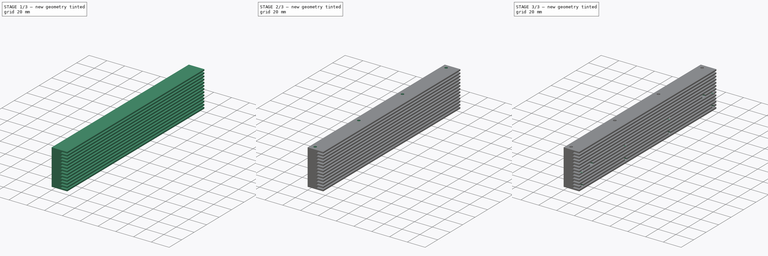
[diagram: build sequence overview — one tinted view per stage of 3, left to right]
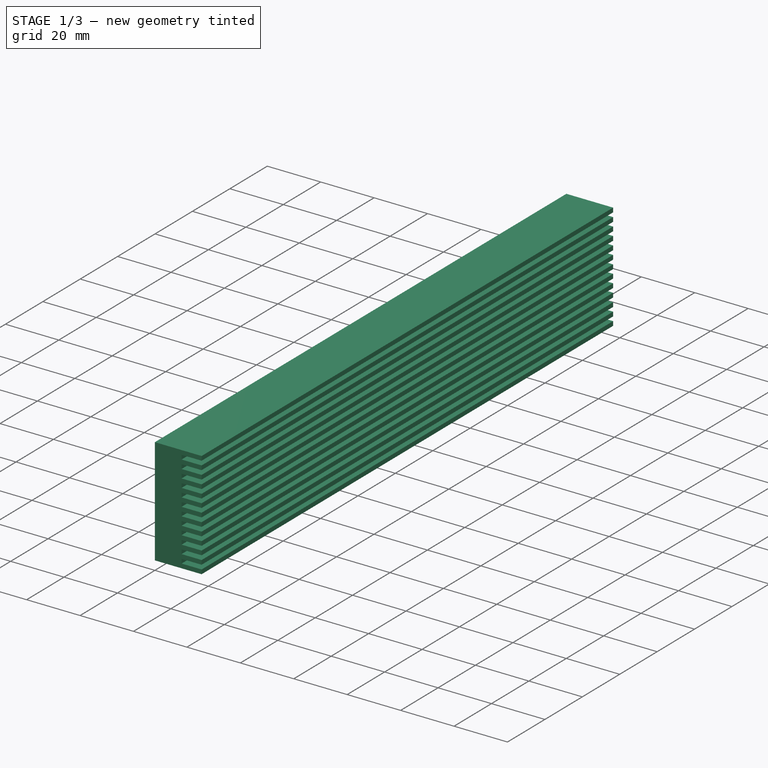
[diagram: stage 1 of 3 — iso view after this stage's code; geometry added in this stage tinted green]
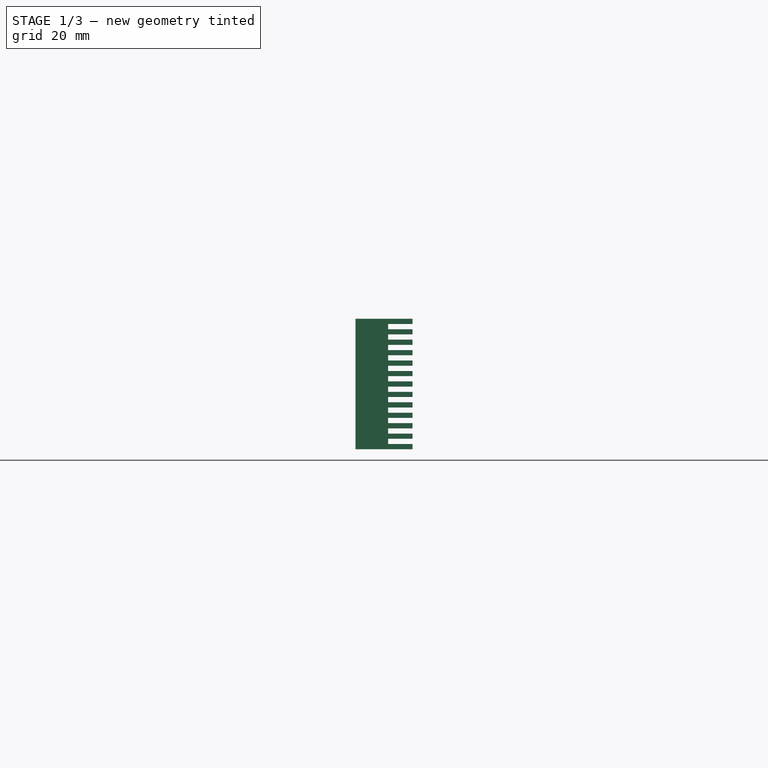
[diagram: stage 1 of 3 — front view after this stage's code; geometry added in this stage tinted green]
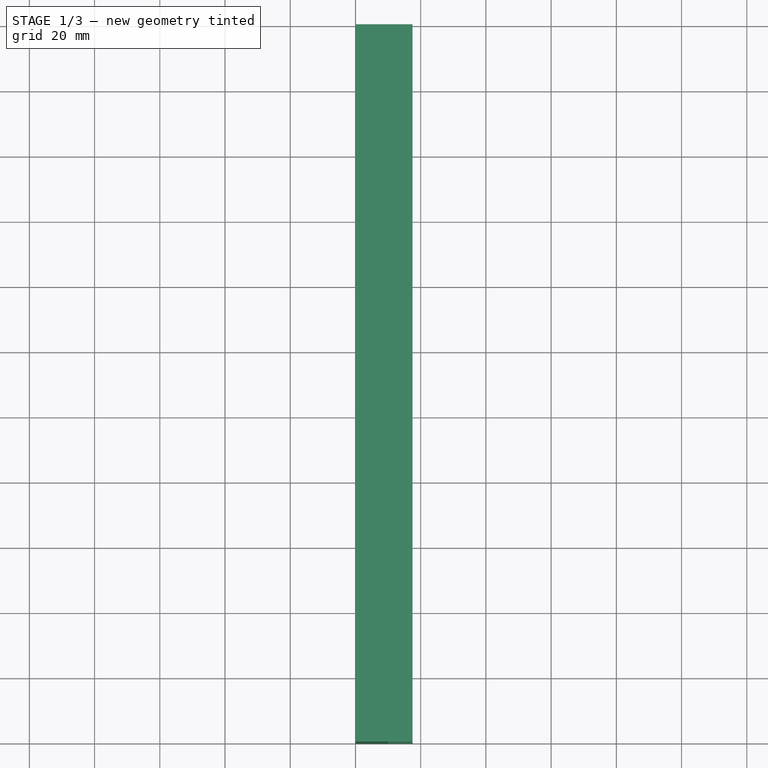
[diagram: stage 1 of 3 — top view after this stage's code; geometry added in this stage tinted green]
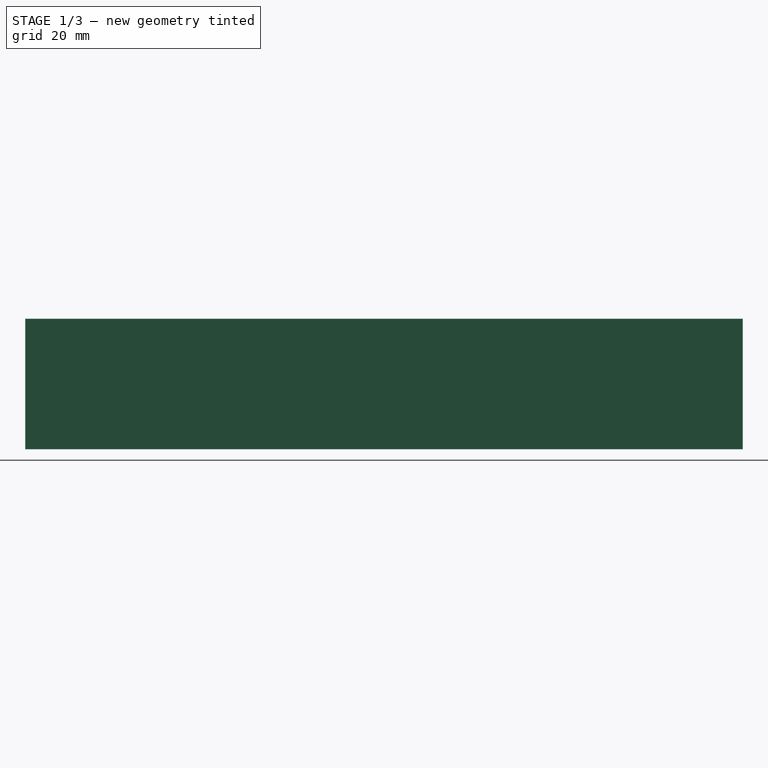
[diagram: stage 1 of 3 — right view after this stage's code; geometry added in this stage tinted green]
FCSTD DOCUMENT  (FreeCAD 0.17R11141 (Git))
Label: fourhead_heater-sink
License: All rights reserved
LicenseURL: http://en.wikipedia.org/wiki/All_rights_reserved
objects: Sketcher::SketchObject×6, PartDesign::Pocket×5, PartDesign::Pad×1, PartDesign::Body×1
note: 19 computed .brp shape members not serialized (recipe doc carries the construction recipe); baked Part::Feature solids carry a one-line shape summary decoded from their .brp

FEATURE [Sketcher::SketchObject] Sketch
  MapMode = 5
  Placement = pos=(0,0,0) rot=(1,0,0;1.5708rad)
  Support = -> [XZ_Plane]
  sketch-geometry (4):
    g0: LineSegment StartX=0 StartY=0 StartZ=0 EndX=17.5 EndY=0 EndZ=0
    g1: LineSegment StartX=17.5 StartY=0 StartZ=0 EndX=17.5 EndY=40 EndZ=0
    g2: LineSegment StartX=17.5 StartY=40 StartZ=0 EndX=0 EndY=40 EndZ=0
    g3: LineSegment StartX=0 StartY=40 StartZ=0 EndX=0 EndY=0 EndZ=0
  constraints (11):
    c: Coincident(g0,g1)
    c: Coincident(g1,g2)
    c: Coincident(g2,g3)
    c: Coincident(g3,g0)
    c: Horizontal(g0)
    c: Horizontal(g2)
    c: Vertical(g1)
    c: Vertical(g3)
    c: Coincident(g0,g-1)
    c: DistanceX(g2,g2) = 17.5
    c: DistanceY(g3,g3) = 40
FEATURE [PartDesign::Pad] Pad
  Length = 220
  Length2 = 100
  Placement = pos=(0,0,0) rot=(1,0,0;1.5708rad)
  Profile = -> Sketch
  Type = 0
FEATURE [Sketcher::SketchObject] Sketch001
  ExternalGeometry = -> [Pad]
  MapMode = 5
  Placement = pos=(0,-220,0) rot=(1,0,0;1.5708rad)
  Support = -> [Pad]
  sketch-geometry (61):
    g0: LineSegment StartX=17.5 StartY=1.6 StartZ=0 EndX=10 EndY=1.6 EndZ=0
    g1: LineSegment StartX=10 StartY=1.6 StartZ=0 EndX=10 EndY=3.2 EndZ=0
    g2: LineSegment StartX=10 StartY=3.2 StartZ=0 EndX=17.5 EndY=3.2 EndZ=0
    g3: LineSegment StartX=17.5 StartY=3.2 StartZ=0 EndX=17.5 EndY=1.6 EndZ=0
    g4: LineSegment StartX=17.5 StartY=4.8 StartZ=0 EndX=10 EndY=4.8 EndZ=0
    g5: LineSegment StartX=10 StartY=4.8 StartZ=0 EndX=10 EndY=6.4 EndZ=0
    g6: LineSegment StartX=10 StartY=6.4 StartZ=0 EndX=17.5 EndY=6.4 EndZ=0
    g7: LineSegment StartX=17.5 StartY=6.4 StartZ=0 EndX=17.5 EndY=4.8 EndZ=0
    g8: LineSegment StartX=17.5 StartY=8 StartZ=0 EndX=10 EndY=8 EndZ=0
    g9: LineSegment StartX=10 StartY=8 StartZ=0 EndX=10 EndY=9.6 EndZ=0
    g10: LineSegment StartX=10 StartY=9.6 StartZ=0 EndX=17.5 EndY=9.6 EndZ=0
    g11: LineSegment StartX=17.5 StartY=9.6 StartZ=0 EndX=17.5 EndY=8 EndZ=0
    g12: LineSegment StartX=17.5 StartY=11.2 StartZ=0 EndX=10 EndY=11.2 EndZ=0
    g13: LineSegment StartX=10 StartY=11.2 StartZ=0 EndX=10 EndY=12.8 EndZ=0
    g14: LineSegment StartX=10 StartY=12.8 StartZ=0 EndX=17.5 EndY=12.8 EndZ=0
    g15: LineSegment StartX=17.5 StartY=12.8 StartZ=0 EndX=17.5 EndY=11.2 EndZ=0
    g16: LineSegment StartX=17.5 StartY=14.4 StartZ=0 EndX=10 EndY=14.4 EndZ=0
    g17: LineSegment StartX=10 StartY=14.4 StartZ=0 EndX=10 EndY=16 EndZ=0
    g18: LineSegment StartX=10 StartY=16 StartZ=0 EndX=17.5 EndY=16 EndZ=0
    g19: LineSegment StartX=17.5 StartY=16 StartZ=0 EndX=17.5 EndY=14.4 EndZ=0
    g20: LineSegment StartX=17.5 StartY=17.6 StartZ=0 EndX=10 EndY=17.6 EndZ=0
    g21: LineSegment StartX=10 StartY=17.6 StartZ=0 EndX=10 EndY=19.2 EndZ=0
    g22: LineSegment StartX=10 StartY=19.2 StartZ=0 EndX=17.5 EndY=19.2 EndZ=0
    g23: LineSegment StartX=17.5 StartY=19.2 StartZ=0 EndX=17.5 EndY=17.6 EndZ=0
    g24: LineSegment StartX=17.5 StartY=20.8 StartZ=0 EndX=10 EndY=20.8 EndZ=0
    g25: LineSegment StartX=10 StartY=20.8 StartZ=0 EndX=10 EndY=22.4 EndZ=0
    g26: LineSegment StartX=10 StartY=22.4 StartZ=0 EndX=17.5 EndY=22.4 EndZ=0
    g27: LineSegment StartX=17.5 StartY=22.4 StartZ=0 EndX=17.5 EndY=20.8 EndZ=0
    g28: LineSegment StartX=17.5 StartY=24 StartZ=0 EndX=10 EndY=24 EndZ=0
    g29: LineSegment StartX=10 StartY=24 StartZ=0 EndX=10 EndY=25.6 EndZ=0
    g30: LineSegment StartX=10 StartY=25.6 StartZ=0 EndX=17.5 EndY=25.6 EndZ=0
    g31: LineSegment StartX=17.5 StartY=25.6 StartZ=0 EndX=17.5 EndY=24 EndZ=0
    g32: LineSegment StartX=17.5 StartY=27.2 StartZ=0 EndX=10 EndY=27.2 EndZ=0
    g33: LineSegment StartX=10 StartY=27.2 StartZ=0 EndX=10 EndY=28.8 EndZ=0
    g34: LineSegment StartX=10 StartY=28.8 StartZ=0 EndX=17.5 EndY=28.8 EndZ=0
    g35: LineSegment StartX=17.5 StartY=28.8 StartZ=0 EndX=17.5 EndY=27.2 EndZ=0
    g36: LineSegment StartX=17.5 StartY=30.4 StartZ=0 EndX=10 EndY=30.4 EndZ=0
    g37: LineSegment StartX=10 StartY=30.4 StartZ=0 EndX=10 EndY=32 EndZ=0
    g38: LineSegment StartX=10 StartY=32 StartZ=0 EndX=17.5 EndY=32 EndZ=0
    g39: LineSegment StartX=17.5 StartY=32 StartZ=0 EndX=17.5 EndY=30.4 EndZ=0
    g40: LineSegment StartX=17.5 StartY=35.2 StartZ=0 EndX=10 EndY=35.2 EndZ=0
    g41: LineSegment StartX=10 StartY=35.2 StartZ=0 EndX=10 EndY=33.6 EndZ=0
    g42: LineSegment StartX=10 StartY=33.6 StartZ=0 EndX=17.5 EndY=33.6 EndZ=0
    g43: LineSegment StartX=17.5 StartY=33.6 StartZ=0 EndX=17.5 EndY=35.2 EndZ=0
    g44: LineSegment [constr] StartX=10 StartY=0 StartZ=0 EndX=10 EndY=1.6 EndZ=0
    g45: LineSegment [constr] StartX=10 StartY=3.2 StartZ=0 EndX=10 EndY=4.8 EndZ=0
    g46: LineSegment [constr] StartX=10 StartY=6.4 StartZ=0 EndX=10 EndY=8 EndZ=0
    g47: LineSegment [constr] StartX=10 StartY=9.6 StartZ=0 EndX=10 EndY=11.2 EndZ=0
    g48: LineSegment [constr] StartX=10 StartY=12.8 StartZ=0 EndX=10 EndY=14.4 EndZ=0
    g49: LineSegment [constr] StartX=10 StartY=16 StartZ=0 EndX=10 EndY=17.6 EndZ=0
    g50: LineSegment [constr] StartX=10 StartY=19.2 StartZ=0 EndX=10 EndY=20.8 EndZ=0
    g51: LineSegment [constr] StartX=10 StartY=22.4 StartZ=0 EndX=10 EndY=24 EndZ=0
    g52: LineSegment [constr] StartX=10 StartY=25.6 StartZ=0 EndX=10 EndY=27.2 EndZ=0
    g53: LineSegment [constr] StartX=10 StartY=28.8 StartZ=0 EndX=10 EndY=30.4 EndZ=0
    g54: LineSegment [constr] StartX=10 StartY=32 StartZ=0 EndX=10 EndY=33.6 EndZ=0
    g55: LineSegment StartX=17.5 StartY=36.8 StartZ=0 EndX=10 EndY=36.8 EndZ=0
    g56: LineSegment StartX=10 StartY=36.8 StartZ=0 EndX=10 EndY=38.4 EndZ=0
    g57: LineSegment StartX=10 StartY=38.4 StartZ=0 EndX=17.5 EndY=38.4 EndZ=0
    g58: LineSegment StartX=17.5 StartY=38.4 StartZ=0 EndX=17.5 EndY=36.8 EndZ=0
    g59: LineSegment [constr] StartX=10 StartY=40 StartZ=0 EndX=10 EndY=38.4 EndZ=0
    g60: LineSegment [constr] StartX=10 StartY=36.8 StartZ=0 EndX=10 EndY=35.2 EndZ=0
  constraints (181):
    c: Coincident(g0,g1)
    c: Coincident(g1,g2)
    c: Coincident(g2,g3)
    c: Coincident(g3,g0)
    c: Horizontal(g0)
    c: Horizontal(g2)
    c: Vertical(g1)
    c: Vertical(g3)
    c: PointOnObject(g0,g-3)
    c: Coincident(g4,g5)
    c: Coincident(g5,g6)
    c: Coincident(g6,g7)
    c: Coincident(g7,g4)
    c: Horizontal(g4)
    c: Horizontal(g6)
    c: Vertical(g5)
    c: Vertical(g7)
    c: PointOnObject(g4,g-3)
    c: Coincident(g8,g9)
    c: Coincident(g9,g10)
    c: Coincident(g10,g11)
    c: Coincident(g11,g8)
    c: Horizontal(g8)
    c: Horizontal(g10)
    c: Vertical(g9)
    c: Vertical(g11)
    c: PointOnObject(g8,g-3)
    c: Coincident(g12,g13)
    c: Coincident(g13,g14)
    c: Coincident(g14,g15)
    c: Coincident(g15,g12)
    c: Horizontal(g12)
    c: Horizontal(g14)
    c: Vertical(g13)
    c: Vertical(g15)
    c: PointOnObject(g12,g-3)
    c: Coincident(g16,g17)
    c: Coincident(g17,g18)
    c: Coincident(g18,g19)
    c: Coincident(g19,g16)
    c: Horizontal(g16)
    c: Horizontal(g18)
    c: Vertical(g17)
    c: Vertical(g19)
    c: PointOnObject(g16,g-3)
    c: Coincident(g20,g21)
    c: Coincident(g21,g22)
    c: Coincident(g22,g23)
    c: Coincident(g23,g20)
    c: Horizontal(g20)
    c: Horizontal(g22)
    c: Vertical(g21)
    c: Vertical(g23)
    c: PointOnObject(g20,g-3)
    c: Coincident(g24,g25)
    c: Coincident(g25,g26)
    c: Coincident(g26,g27)
    c: Coincident(g27,g24)
    c: Horizontal(g24)
    c: Horizontal(g26)
    c: Vertical(g25)
    c: Vertical(g27)
    c: PointOnObject(g24,g-3)
    c: Coincident(g28,g29)
    c: Coincident(g29,g30)
    c: Coincident(g30,g31)
    c: Coincident(g31,g28)
    c: Horizontal(g28)
    c: Horizontal(g30)
    c: Vertical(g29)
    c: Vertical(g31)
    c: PointOnObject(g28,g-3)
    c: Coincident(g32,g33)
    c: Coincident(g33,g34)
    c: Coincident(g34,g35)
    c: Coincident(g35,g32)
    c: Horizontal(g32)
    c: Horizontal(g34)
    c: Vertical(g33)
    c: Vertical(g35)
    c: PointOnObject(g32,g-3)
    c: Coincident(g36,g37)
    c: Coincident(g37,g38)
    c: Coincident(g38,g39)
    c: Coincident(g39,g36)
    c: Horizontal(g36)
    c: Horizontal(g38)
    c: Vertical(g37)
    c: Vertical(g39)
    c: Coincident(g40,g41)
    c: Coincident(g41,g42)
    c: Coincident(g42,g43)
    c: Coincident(g43,g40)
    c: Horizontal(g40)
    c: Horizontal(g42)
    c: Vertical(g41)
    c: Vertical(g43)
    c: PointOnObject(g40,g-3)
    c: PointOnObject(g44,g-1)
    c: Coincident(g44,g0)
    c: Vertical(g44)
    c: Coincident(g45,g1)
    c: Coincident(g45,g4)
    c: Vertical(g45)
    c: Coincident(g46,g5)
    c: Coincident(g46,g8)
    c: Coincident(g47,g9)
    c: Coincident(g47,g12)
    c: Coincident(g48,g13)
    c: Coincident(g48,g16)
    c: Coincident(g49,g17)
    c: Coincident(g49,g20)
    c: Coincident(g50,g21)
    c: Coincident(g50,g24)
    c: Coincident(g51,g25)
    c: Coincident(g51,g28)
    c: Coincident(g52,g29)
    c: Coincident(g52,g32)
    c: Coincident(g53,g33)
    c: Coincident(g36,g53)
    c: Equal(g53,g52)
    c: Equal(g52,g51)
    c: Equal(g51,g50)
    c: Equal(g50,g49)
    c: Equal(g49,g48)
    c: Equal(g48,g47)
    c: Equal(g47,g46)
    c: Equal(g46,g45)
    c: Equal(g45,g44)
    c: Vertical(g50)
    c: Vertical(g49)
    c: Vertical(g48)
    c: Vertical(g47)
    c: Vertical(g46)
    c: Vertical(g51)
    c: Vertical(g52)
    c: Vertical(g53)
    c: DistanceY(g44,g44) = 1.6
    c: PointOnObject(g38,g-3)
    c: Coincident(g54,g37)
    c: Coincident(g54,g41)
    c: Equal(g25,g50)
    c: Equal(g50,g51)
    c: Equal(g51,g29)
    c: Equal(g29,g52)
    c: Equal(g52,g33)
    c: Equal(g33,g53)
    c: Equal(g53,g37)
    c: Equal(g37,g54)
    c: Equal(g54,g41)
    c: Equal(g41,g21)
    c: Equal(g21,g49)
    c: Equal(g49,g17)
    c: Equal(g17,g48)
    c: Equal(g48,g13)
    c: Equal(g13,g47)
    c: Equal(g47,g9)
    c: Equal(g9,g46)
    c: Equal(g46,g5)
    c: Equal(g5,g45)
    c: Equal(g45,g1)
    c: Equal(g1,g44)
    c: Vertical(g54)
    c: Coincident(g55,g56)
    c: Coincident(g56,g57)
    c: Coincident(g57,g58)
    c: Coincident(g58,g55)
    c: Horizontal(g55)
    c: Horizontal(g57)
    c: Vertical(g56)
    c: Vertical(g58)
    c: PointOnObject(g55,g-3)
    c: Coincident(g59,g56)
    c: Coincident(g60,g55)
    c: Coincident(g60,g40)
    c: Vertical(g60)
    c: Vertical(g59)
    c: Equal(g59,g56)
    c: Equal(g56,g60)
    c: Equal(g60,g41)
    c: DistanceX(g57,g57) = 7.5
FEATURE [PartDesign::Pocket] Pocket
  BaseFeature = -> Pad
  Length = 5
  Placement = pos=(0,0,0) rot=(1,0,0;1.5708rad)
  Profile = -> Sketch001
  Type = 1
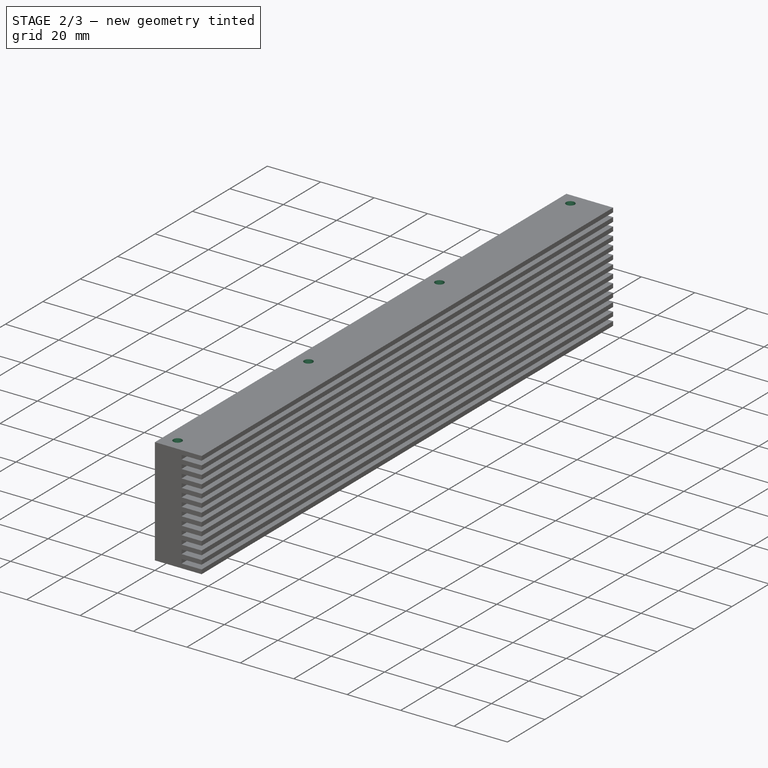
[diagram: stage 2 of 3 — iso view after this stage's code; geometry added in this stage tinted green]
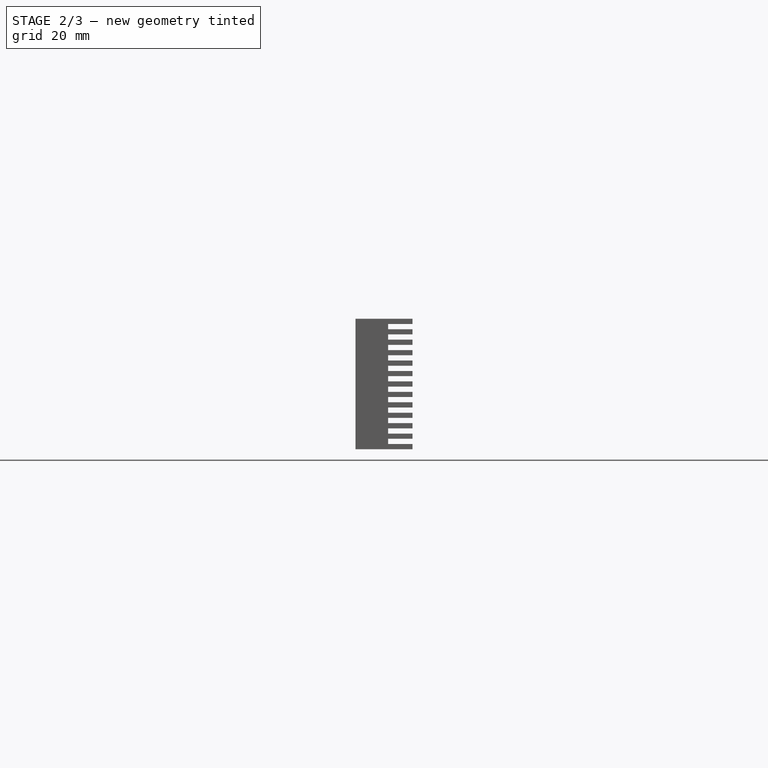
[diagram: stage 2 of 3 — front view after this stage's code; geometry added in this stage tinted green]
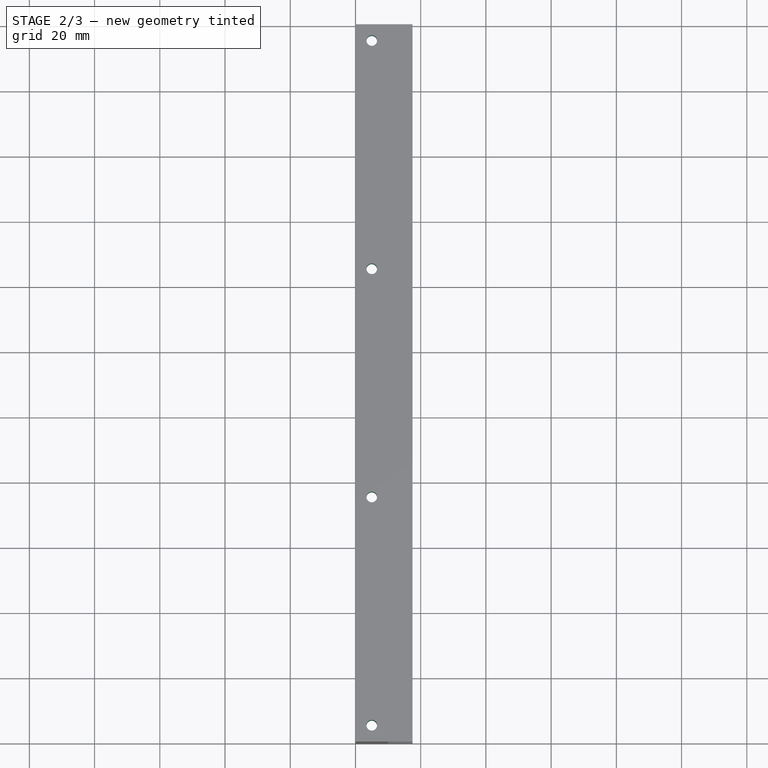
[diagram: stage 2 of 3 — top view after this stage's code; geometry added in this stage tinted green]
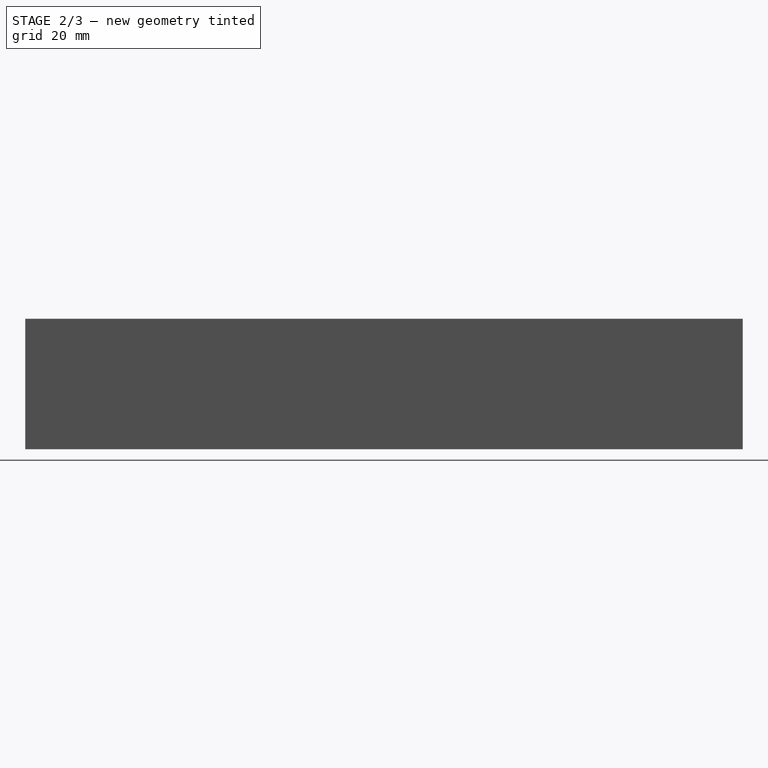
[diagram: stage 2 of 3 — right view after this stage's code; geometry added in this stage tinted green]
FEATURE [Sketcher::SketchObject] Sketch002
  ExternalGeometry = -> [Pocket]
  MapMode = 5
  Placement = pos=(0,0,0) rot=(1,0,0;3.14159rad)
  Support = -> [Pocket]
  sketch-geometry (9):
    g0: LineSegment [constr] StartX=0 StartY=220 StartZ=0 EndX=5 EndY=215 EndZ=0
    g1: LineSegment [constr] StartX=5 StartY=215 StartZ=0 EndX=5 EndY=145 EndZ=0
    g2: LineSegment [constr] StartX=5 StartY=145 StartZ=0 EndX=5 EndY=75 EndZ=0
    g3: LineSegment [constr] StartX=5 StartY=75 StartZ=0 EndX=5 EndY=5 EndZ=0
    g4: LineSegment [constr] StartX=5 StartY=5 StartZ=0 EndX=0 EndY=0 EndZ=0
    g5: Circle CenterX=5 CenterY=145 CenterZ=0 NormalX=0 NormalY=0 NormalZ=1 Radius=3.5
    g6: Circle CenterX=5 CenterY=75 CenterZ=0 NormalX=0 NormalY=0 NormalZ=1 Radius=3.5
    g7: Circle CenterX=5 CenterY=5 CenterZ=0 NormalX=0 NormalY=0 NormalZ=1 Radius=3.5
    g8: Circle CenterX=5 CenterY=215 CenterZ=0 NormalX=0 NormalY=0 NormalZ=1 Radius=3.5
  constraints (22):
    c: Coincident(g-3,g0)
    c: Coincident(g0,g1)
    c: Vertical(g1)
    c: Coincident(g1,g2)
    c: Vertical(g2)
    c: Coincident(g2,g3)
    c: Vertical(g3)
    c: Coincident(g3,g4)
    c: Coincident(g4,g-1)
    c: Equal(g4,g0)
    c: Equal(g1,g2)
    c: Equal(g2,g3)
    c: DistanceY(g1,g1) = 70
    c: Coincident(g5,g1)
    c: Coincident(g6,g2)
    c: Coincident(g7,g3)
    c: Coincident(g8,g0)
    c: Equal(g5,g6)
    c: Equal(g6,g7)
    c: Equal(g7,g8)
    c: Radius(g8) = 3.5
    c: DistanceX(g3,g-4) = 12.5
FEATURE [PartDesign::Pocket] Pocket001
  BaseFeature = -> Pocket
  Length = 25
  Placement = pos=(0,0,0) rot=(1,0,0;1.5708rad)
  Profile = -> Sketch002
  Type = 0
FEATURE [Sketcher::SketchObject] Sketch003
  ExternalGeometry = -> [Pocket001]
  MapMode = 5
  Placement = pos=(0,0,0) rot=(1,0,0;3.14159rad)
  Support = -> [Pocket001]
  sketch-geometry (4):
    g0: Circle CenterX=5 CenterY=215 CenterZ=0 NormalX=0 NormalY=0 NormalZ=1 Radius=1.625
    g1: Circle CenterX=5 CenterY=145 CenterZ=0 NormalX=0 NormalY=0 NormalZ=1 Radius=1.625
    g2: Circle CenterX=5 CenterY=75 CenterZ=0 NormalX=0 NormalY=0 NormalZ=1 Radius=1.625
    g3: Circle CenterX=5 CenterY=5 CenterZ=0 NormalX=0 NormalY=0 NormalZ=1 Radius=1.625
  constraints (8):
    c: Coincident(g0,g-6)
    c: Coincident(g1,g-5)
    c: Coincident(g2,g-4)
    c: Coincident(g3,g-3)
    c: Equal(g1,g0)
    c: Equal(g0,g2)
    c: Equal(g2,g3)
    c: Radius(g0) = 1.625
FEATURE [PartDesign::Pocket] Pocket002
  BaseFeature = -> Pocket001
  Length = 5
  Placement = pos=(0,0,0) rot=(1,0,0;1.5708rad)
  Profile = -> Sketch003
  Type = 1
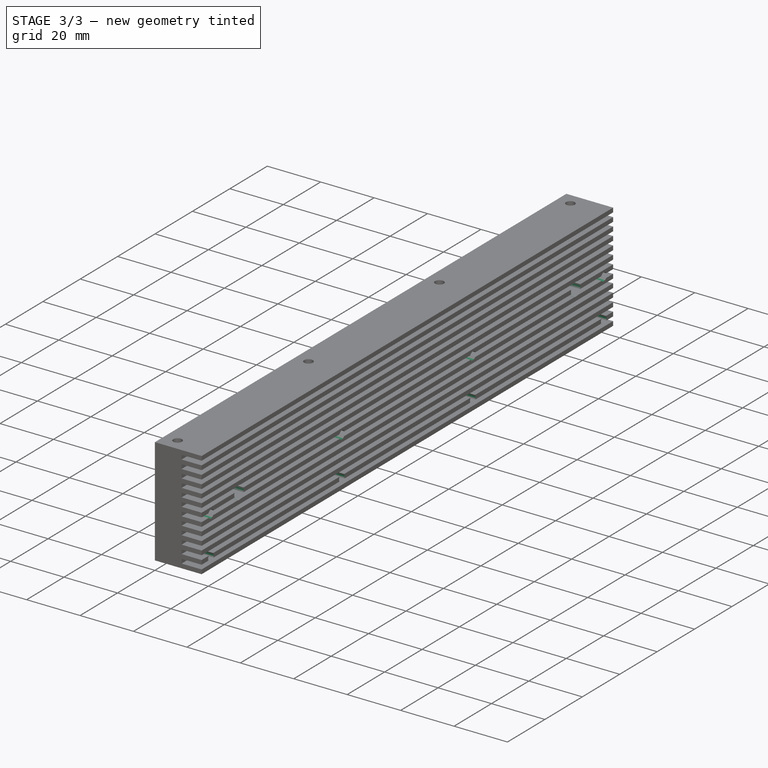
[diagram: stage 3 of 3 — iso view after this stage's code; geometry added in this stage tinted green]
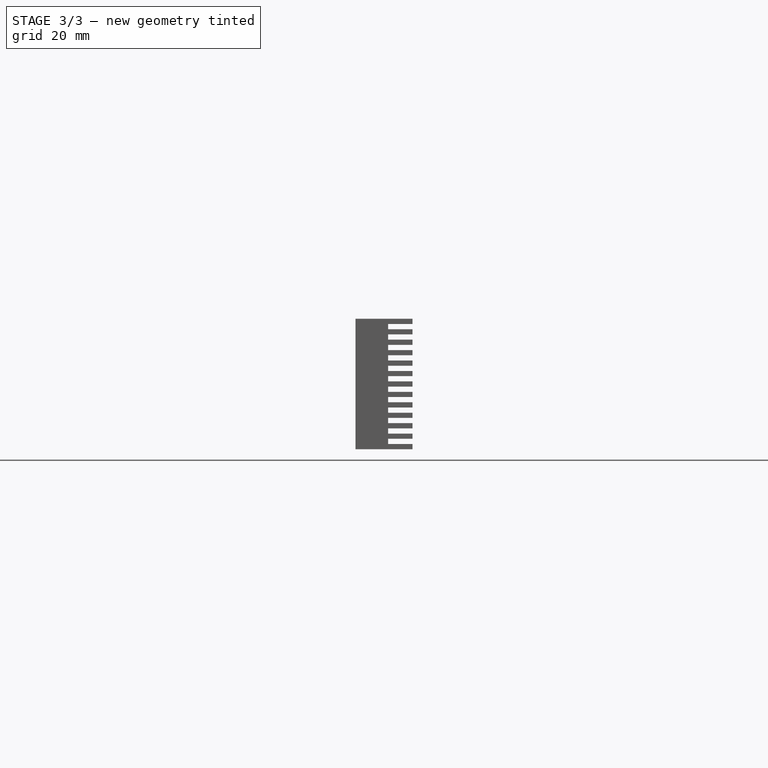
[diagram: stage 3 of 3 — front view after this stage's code; geometry added in this stage tinted green]
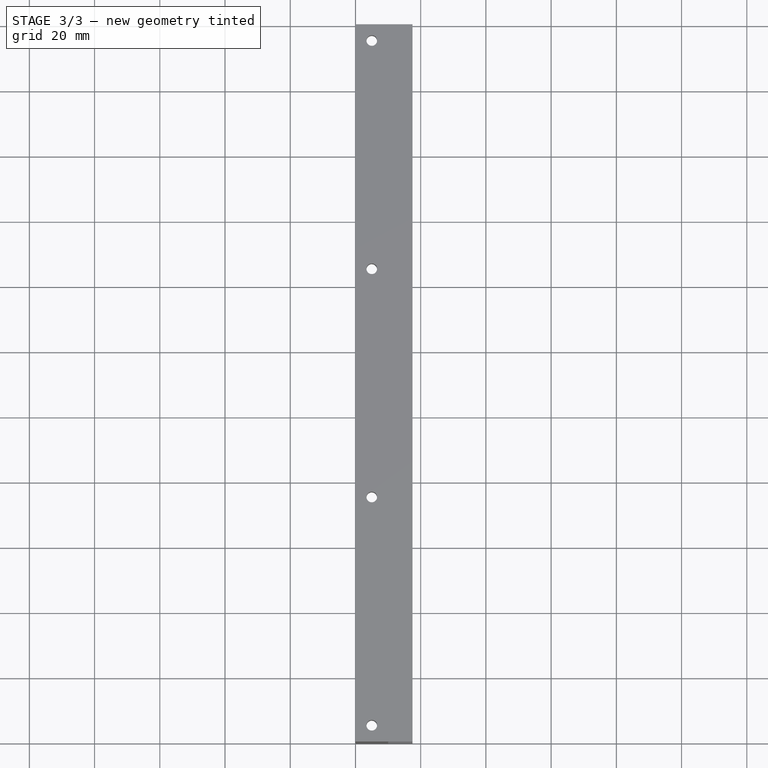
[diagram: stage 3 of 3 — top view after this stage's code; geometry added in this stage tinted green]
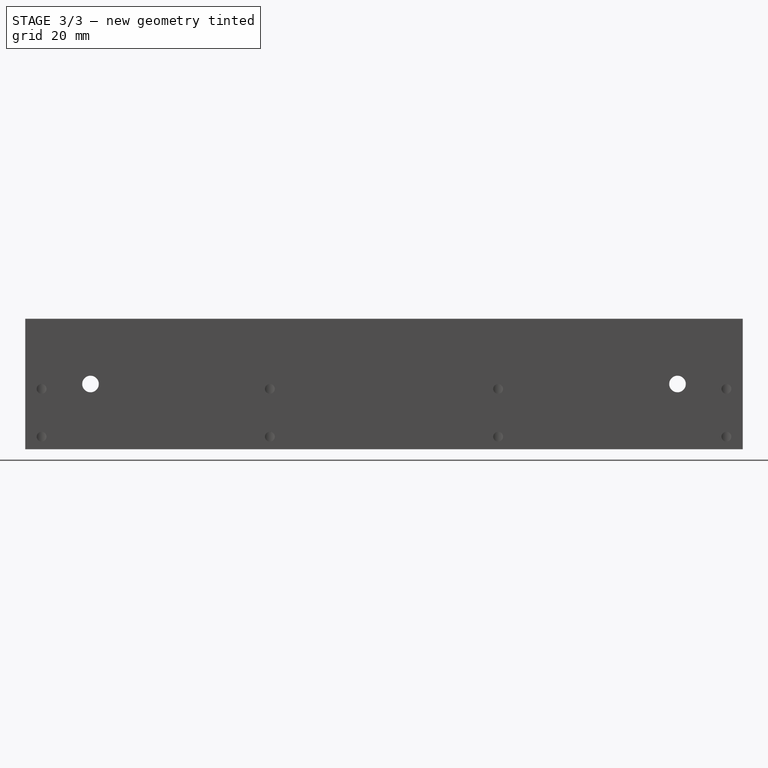
[diagram: stage 3 of 3 — right view after this stage's code; geometry added in this stage tinted green]
FEATURE [Sketcher::SketchObject] Sketch004
  ExternalGeometry = -> [Pocket002]
  MapMode = 5
  Placement = pos=(17.5,0,0) rot=(0.707107,0,0.707107;3.14159rad)
  Support = -> [Pocket002]
  sketch-geometry (14):
    g0: Circle CenterX=3.85 CenterY=215 CenterZ=0 NormalX=0 NormalY=0 NormalZ=1 Radius=1.5
    g1: Circle CenterX=18.5 CenterY=215 CenterZ=0 NormalX=0 NormalY=0 NormalZ=1 Radius=1.5
    g2: Circle CenterX=3.85 CenterY=145 CenterZ=0 NormalX=0 NormalY=0 NormalZ=1 Radius=1.5
    g3: Circle CenterX=18.5 CenterY=145 CenterZ=0 NormalX=0 NormalY=0 NormalZ=1 Radius=1.5
    g4: Circle CenterX=3.85 CenterY=75 CenterZ=0 NormalX=0 NormalY=0 NormalZ=1 Radius=1.5
    g5: Circle CenterX=18.5 CenterY=75 CenterZ=0 NormalX=0 NormalY=0 NormalZ=1 Radius=1.5
    g6: Circle CenterX=3.85 CenterY=5 CenterZ=0 NormalX=0 NormalY=0 NormalZ=1 Radius=1.5
    g7: Circle CenterX=18.5 CenterY=5 CenterZ=0 NormalX=0 NormalY=0 NormalZ=1 Radius=1.5
    g8: LineSegment [constr] StartX=3.85 StartY=145 StartZ=0 EndX=3.85 EndY=75 EndZ=0
    g9: LineSegment [constr] StartX=3.85 StartY=75 StartZ=0 EndX=3.85 EndY=5 EndZ=0
    g10: LineSegment [constr] StartX=18.5 StartY=5 StartZ=0 EndX=18.5 EndY=75 EndZ=0
    g11: LineSegment [constr] StartX=18.5 StartY=75 StartZ=0 EndX=18.5 EndY=145 EndZ=0
    g12: LineSegment [constr] StartX=18.5 StartY=145 StartZ=0 EndX=18.5 EndY=215 EndZ=0
    g13: LineSegment [constr] StartX=3.85 StartY=145 StartZ=0 EndX=3.85 EndY=215 EndZ=0
  constraints (36):
    c: PointOnObject(g0,g-6)
    c: PointOnObject(g1,g-6)
    c: PointOnObject(g2,g-3)
    c: PointOnObject(g3,g-3)
    c: PointOnObject(g4,g-4)
    c: PointOnObject(g5,g-4)
    c: PointOnObject(g6,g-5)
    c: PointOnObject(g7,g-5)
    c: Equal(g7,g6)
    c: Equal(g6,g5)
    c: Equal(g5,g4)
    c: Equal(g4,g2)
    c: Equal(g2,g3)
    c: Equal(g3,g1)
    c: Equal(g1,g0)
    c: Coincident(g8,g4)
    c: Vertical(g8)
    c: Coincident(g8,g9)
    c: Coincident(g9,g6)
    c: Coincident(g10,g7)
    c: Coincident(g10,g5)
    c: Coincident(g10,g11)
    c: Coincident(g11,g3)
    c: Coincident(g11,g12)
    c: Vertical(g12)
    c: Coincident(g1,g12)
    c: Coincident(g13,g2)
    c: Coincident(g13,g0)
    c: Vertical(g13)
    c: Coincident(g2,g8)
    c: Vertical(g11)
    c: Vertical(g10)
    c: Vertical(g9)
    c: Radius(g1) = 1.5
    c: DistanceX(g0) = 3.85
    c: DistanceX(g1) = 18.5
FEATURE [PartDesign::Pocket] Pocket003
  BaseFeature = -> Pocket002
  Length = 13
  Placement = pos=(0,0,0) rot=(1,0,0;1.5708rad)
  Profile = -> Sketch004
  Type = 0
FEATURE [Sketcher::SketchObject] Sketch005
  ExternalGeometry = -> [Pocket003]
  MapMode = 5
  Placement = pos=(0,0,0) rot=(0.707107,0,-0.707107;3.14159rad)
  Support = -> [Pocket003]
  sketch-geometry (7):
    g0: Circle CenterX=-20 CenterY=200 CenterZ=0 NormalX=0 NormalY=0 NormalZ=1 Radius=2.54
    g1: Circle CenterX=-20 CenterY=20 CenterZ=0 NormalX=0 NormalY=0 NormalZ=1 Radius=2.54
    g2: LineSegment [constr] StartX=-40 StartY=220 StartZ=0 EndX=-20 EndY=200 EndZ=0
    g3: LineSegment [constr] StartX=-20 StartY=200 StartZ=0 EndX=0 EndY=220 EndZ=0
    g4: LineSegment [constr] StartX=0 StartY=220 StartZ=0 EndX=-40 EndY=0 EndZ=0
    g5: LineSegment [constr] StartX=-40 StartY=0 StartZ=0 EndX=-20 EndY=20 EndZ=0
    g6: LineSegment [constr] StartX=-20 StartY=20 StartZ=0 EndX=0 EndY=0 EndZ=0
  constraints (16):
    c: Coincident(g-3,g2)
    c: Coincident(g2,g0)
    c: Coincident(g2,g3)
    c: Coincident(g3,g-3)
    c: Coincident(g3,g4)
    c: Coincident(g4,g-4)
    c: Coincident(g4,g5)
    c: Coincident(g5,g1)
    c: Coincident(g5,g6)
    c: Coincident(g6,g-1)
    c: Equal(g6,g5)
    c: Equal(g5,g2)
    c: Equal(g2,g3)
    c: Radius(g0) = 2.54
    c: Equal(g0,g1)
    c: DistanceY(g-1,g1) = 20
FEATURE [PartDesign::Pocket] Pocket004
  BaseFeature = -> Pocket003
  Length = 5
  Placement = pos=(0,0,0) rot=(1,0,0;1.5708rad)
  Profile = -> Sketch005
  Type = 1
FEATURE [PartDesign::Body] Body
  Group = -> [Sketch,Pad,Sketch001,Pocket,Sketch002,Pocket001,Sketch003,Pocket002,Sketch004,Pocket003,Sketch005,Pocket004]
  Origin = -> BodyOrigin
  Tip = -> Pocket004
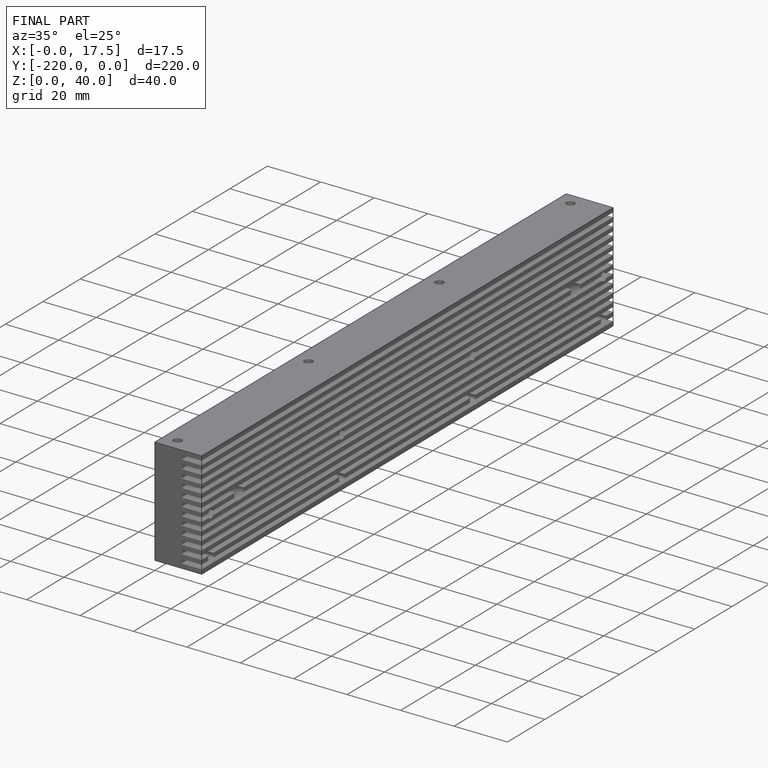
[diagram: finished part — iso view with bounding-box wireframe]
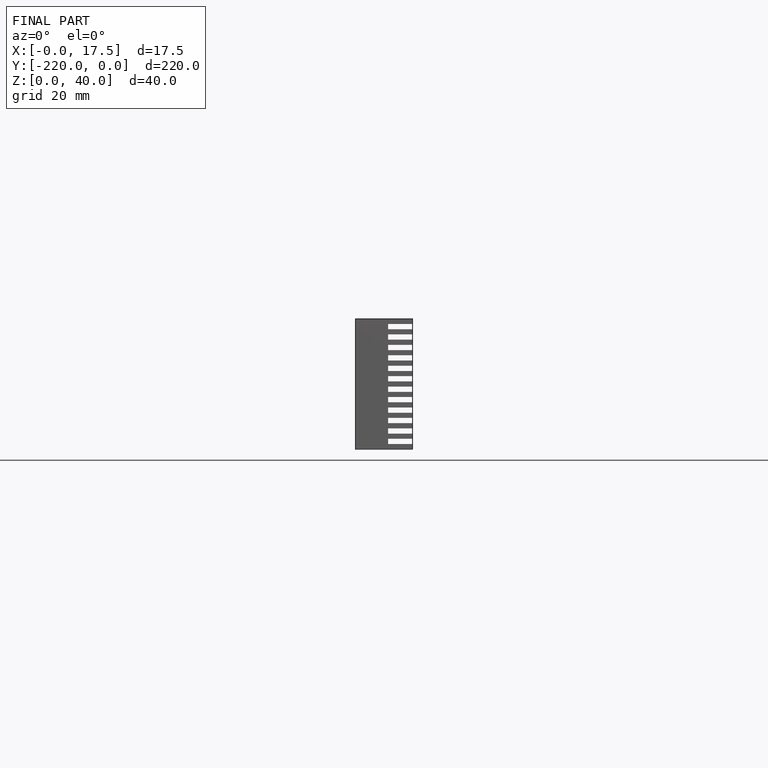
[diagram: finished part — front view with bounding-box wireframe]
